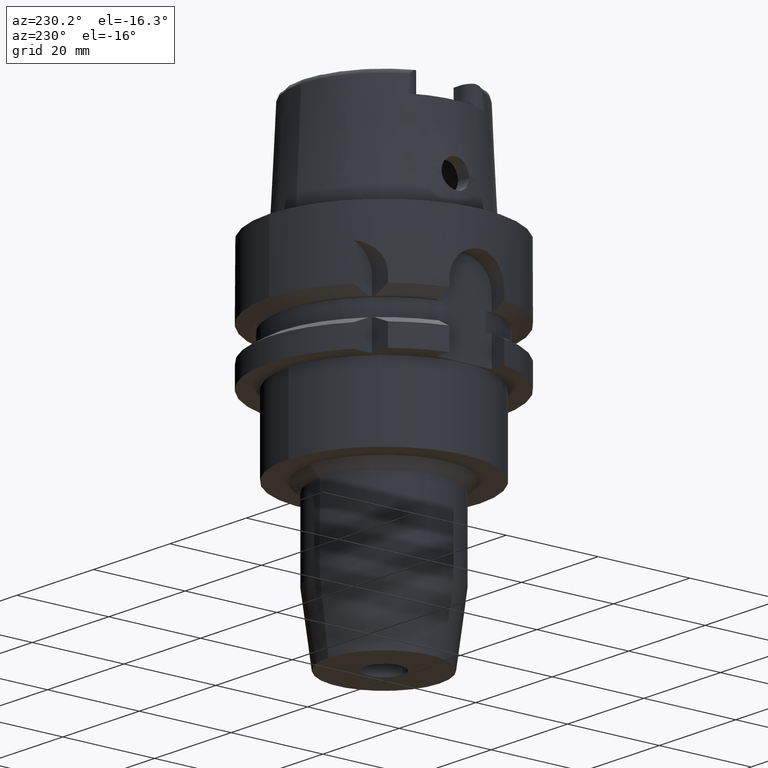
[diagram: clean part render]
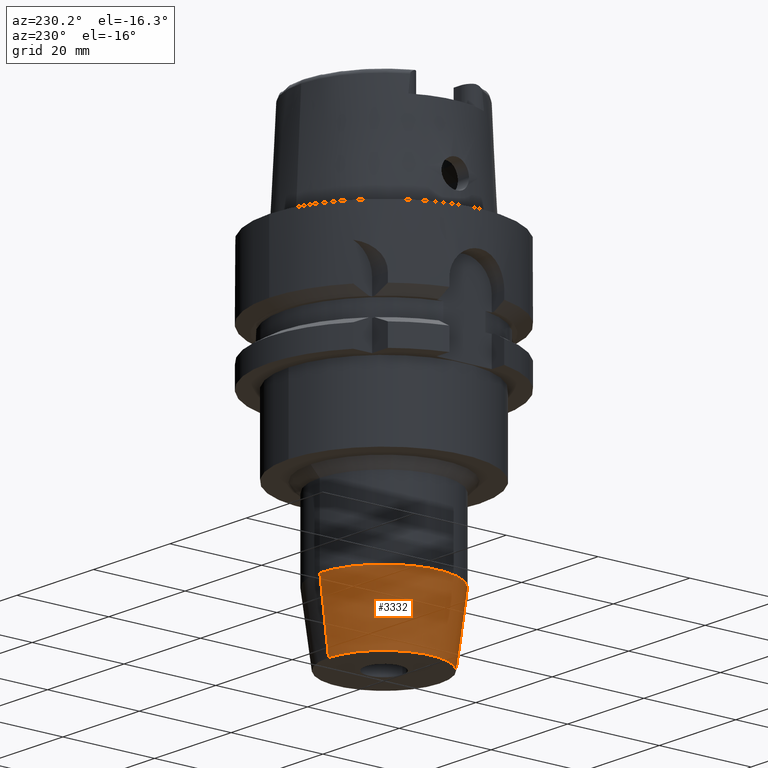
[diagram: same view with one face highlighted and labeled with its STEP entity id]
A machine part, auxiliary view. The second image highlights one B-rep face of the part: STEP entity #3332.
In plain terms, the highlighted conical surface has half-angle 7.5 deg.
Its self-contained STEP definition (entity closure, byte-faithful):
#1007=CARTESIAN_POINT('',(0.E0,0.E0,-7.5E1));
#1008=DIRECTION('',(0.E0,0.E0,1.E0));
#1009=DIRECTION('',(0.E0,1.E0,0.E0));
#1010=AXIS2_PLACEMENT_3D('',#1007,#1008,#1009);
#1031=DIRECTION('',(0.E0,-1.305261922200E-1,-9.914448613738E-1));
#1032=VECTOR('',#1031,1.458711058383E1);
#1033=CARTESIAN_POINT('',(0.E0,1.4E1,-6.053768416937E1));
#1034=LINE('',#1033,#1032);
#1046=CARTESIAN_POINT('',(0.E0,0.E0,-6.053768416937E1));
#1047=DIRECTION('',(0.E0,0.E0,1.E0));
#1048=DIRECTION('',(0.E0,1.E0,0.E0));
#1049=AXIS2_PLACEMENT_3D('',#1046,#1047,#1048);
#1054=DIRECTION('',(0.E0,1.305261922200E-1,-9.914448613738E-1));
#1055=VECTOR('',#1054,1.458711058383E1);
#1056=CARTESIAN_POINT('',(0.E0,-1.4E1,-6.053768416937E1));
#1057=LINE('',#1056,#1055);
#2409=CARTESIAN_POINT('',(0.E0,-1.2096E1,-7.5E1));
#2410=CARTESIAN_POINT('',(0.E0,1.2096E1,-7.5E1));
#2411=VERTEX_POINT('',#2409);
#2412=VERTEX_POINT('',#2410);
#2413=CARTESIAN_POINT('',(0.E0,1.4E1,-6.053768416937E1));
#2414=VERTEX_POINT('',#2413);
#2415=CARTESIAN_POINT('',(0.E0,-1.4E1,-6.053768416937E1));
#2416=VERTEX_POINT('',#2415);
#3320=CARTESIAN_POINT('',(0.E0,0.E0,-6.776884208469E1));
#3321=DIRECTION('',(0.E0,0.E0,1.E0));
#3322=DIRECTION('',(0.E0,1.E0,0.E0));
#3323=AXIS2_PLACEMENT_3D('',#3320,#3321,#3322);
#3324=CONICAL_SURFACE('',#3323,1.3048E1,7.5E0);
#3325=ORIENTED_EDGE('',*,*,#3310,.F.);
#3327=ORIENTED_EDGE('',*,*,#3326,.T.);
#3328=ORIENTED_EDGE('',*,*,#3313,.T.);
#3329=ORIENTED_EDGE('',*,*,#3296,.F.);
#3330=EDGE_LOOP('',(#3325,#3327,#3328,#3329));
#3331=FACE_OUTER_BOUND('',#3330,.F.);
#1011=CIRCLE('',#1010,1.2096E1);
#1050=CIRCLE('',#1049,1.4E1);
#3296=EDGE_CURVE('',#2412,#2411,#1011,.T.);
#3310=EDGE_CURVE('',#2414,#2412,#1034,.T.);
#3313=EDGE_CURVE('',#2416,#2411,#1057,.T.);
#3326=EDGE_CURVE('',#2414,#2416,#1050,.T.);
#3332=ADVANCED_FACE('',(#3331),#3324,.T.);